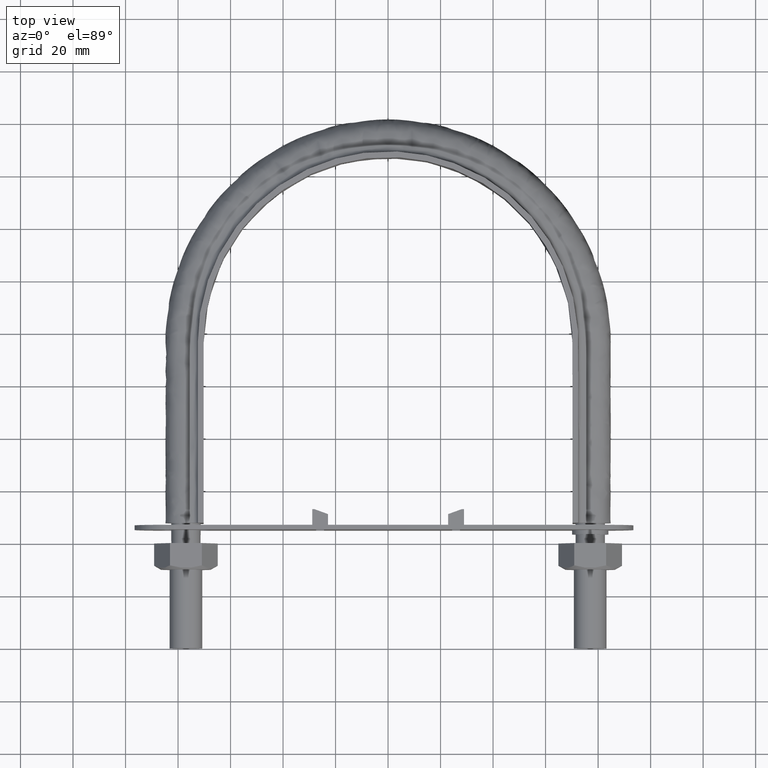
[diagram: clean part render]
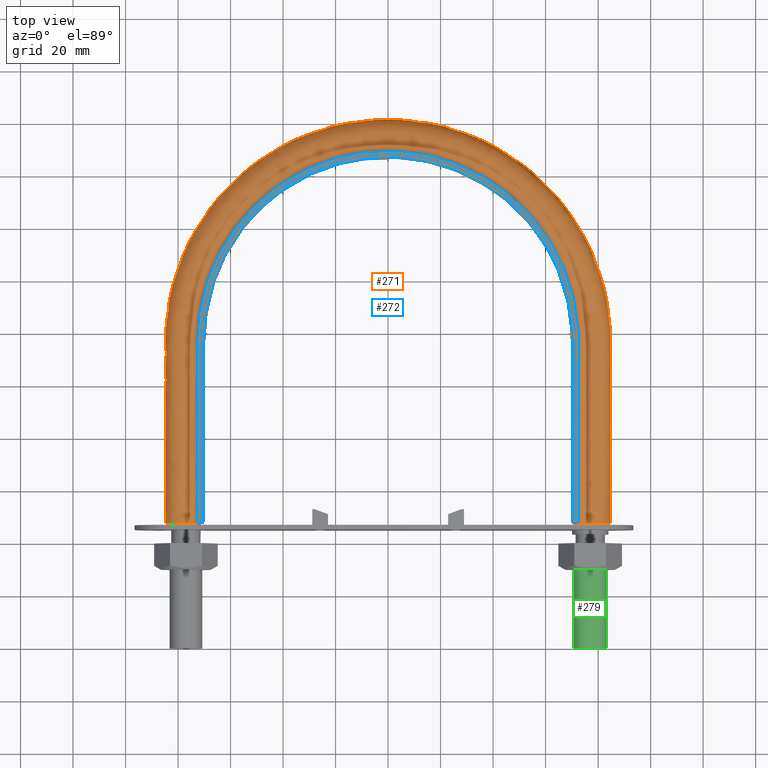
[diagram: same view with three faces highlighted in distinct colors, each labeled with its STEP entity id]
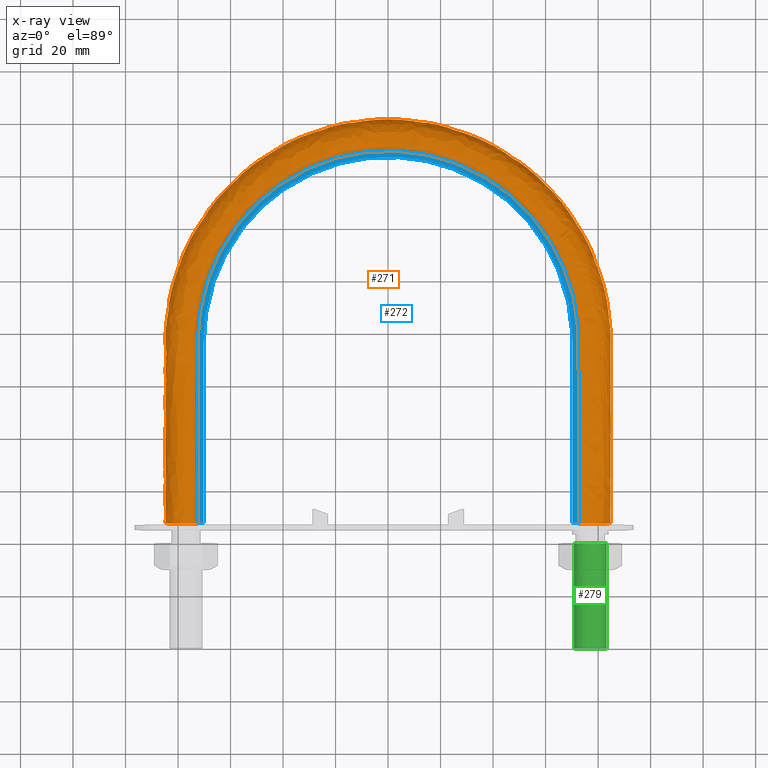
[diagram: x-ray of the same camera — body ghosted, the three highlighted faces saturated]
A machine part, top view with three faces highlighted in distinct colors.
The next image is the same camera in x-ray (body ghosted, the three faces saturated) — at least one of them is partly hidden behind the body in this view.
Their STEP definitions:

[orange] entity #271 — the highlighted face is a freeform B-spline surface patch.
#271 = ADVANCED_FACE( '', ( #355 ), #356, .F. );
#355 = FACE_OUTER_BOUND( '', #543, .T. );
#356 = B_SPLINE_SURFACE_WITH_KNOTS( '', 3, 3, ( ( #544, #545, #546, #547, #548, #549, #550, #551, #552, #553, #554, #555, #556, #557, #558, #559 ), ( #560, #561, #562, #563, #564, #565, #566, #567, #568, #569, #570, #571, #572, #573, #574, #575 ), ( #576, #577, #578, #579, #580, #581, #582, #583, #584, #585, #586, #587, #588, #589, #590, #591 ), ( #592, #593, #594, #595, #596, #597, #598, #599, #600, #601, #602, #603, #604, #605, #606, #607 ), ( #608, #609, #610, #611, #612, #613, #614, #615, #616, #617, #618, #619, #620, #621, #622, #623 ), ( #624, #625, #626, #627, #628, #629, #630, #631, #632, #633, #634, #635, #636, #637, #638, #639 ), ( #640, #641, #642, #643, #644, #645, #646, #647, #648, #649, #650, #651, #652, #653, #654, #655 ), ( #656, #657, #658, #659, #660, #661, #662, #663, #664, #665, #666, #667, #668, #669, #670, #671 ), ( #672, #673, #674, #675, #676, #677, #678, #679, #680, #681, #682, #683, #684, #685, #686, #687 ), ( #688, #689, #690, #691, #692, #693, #694, #695, #696, #697, #698, #699, #700, #701, #702, #703 ), ( #704, #705, #706, #707, #708, #709, #710, #711, #712, #713, #714, #715, #716, #717, #718, #719 ), ( #720, #721, #722, #723, #724, #725, #726, #727, #728, #729, #730, #731, #732, #733, #734, #735 ), ( #736, #737, #738, #739, #740, #741, #742, #743, #744, #745, #746, #747, #748, #749, #750, #751 ), ( #752, #753, #754, #755, #756, #757, #758, #759, #760, #761, #762, #763, #764, #765, #766, #767 ), ( #768, #769, #770, #771, #772, #773, #774, #775, #776, #777, #778, #779, #780, #781, #782, #783 ), ( #784, #785, #786, #787, #788, #789, #790, #791, #792, #793, #794, #795, #796, #797, #798, #799 ), ( #800, #801, #802, #803, #804, #805, #806, #807, #808, #809, #810, #811, #812, #813, #814, #815 ), ( #816, #817, #818, #819, #820, #821, #822, #823, #824, #825, #826, #827, #828, #829, #830, #831 ), ( #832, #833, #834, #835, #836, #837, #838, #839, #840, #841, #842, #843, #844, #845, #846, #847 ), ( #848, #849, #850, #851, #852, #853, #854, #855, #856, #857, #858, #859, #860, #861, #862, #863 ), ( #864, #865, #866, #867, #868, #869, #870, #871, #872, #873, #874, #875, #876, #877, #878, #879 ), ( #880, #881, #882, #883, #884, #885, #886, #887, #888, #889, #890, #891, #892, #893, #894, #895 ), ( #896, #897, #898, #899, #900, #901, #902, #903, #904, #905, #906, #907, #908, #909, #910, #911 ), ( #912, #913, #914, #915, #916, #917, #918, #919, #920, #921, #922, #923, #924, #925, #926, #927 ), ( #928, #929, #930, #931, #932, #933, #934, #935, #936, #937, #938, #939, #940, #941, #942, #943 ), ( #944, #945, #946, #947, #948, #949, #950, #951, #952, #953, #954, #955, #956, #957, #958, #959 ), ( #960, #961, #962, #963, #964, #965, #966, #967, #968, #969, #970, #971, #972, #973, #974, #975 ), ( #976, #977, #978, #979, #980, #981, #982, #983, #984, #985, #986, #987, #988, #989, #990, #991 ), ( #992, #993, #994, #995, #996, #997, #998, #999, #1000, #1001, #1002, #1003, #1004, #1005, #1006, #1007 ), ( #1008, #1009, #1010, #1011, #1012, #1013, #1014, #1015, #1016, #1017, #1018, #1019, #1020, #1021, #1022, #1023 ), ( #1024, #1025, #1026, #1027, #1028, #1029, #1030, #1031, #1032, #1033, #1034, #1035, #1036, #1037, #1038, #1039 ) ), .UNSPECIFIED., .F., .F., .F., ( 4, 3, 1, 1, 1, 3, 3, 1, 1, 1, 3, 3, 1, 1, 1, 3, 4 ), ( 4, 3, 1, 1, 1, 1, 1, 1, 3, 4 ), ( 0.105263157894737, 0.157894736842105, 0.210526315789474, 0.263157894736842, 0.315789473684211, 0.368421052631579, 0.421052631578947, 0.473684210526316, 0.526315789473684, 0.578947368421053, 0.631578947368421, 0.684210526315789, 0.736842105263158, 0.789473684210526, 0.842105263157895, 0.894736842105263, 0.947368421052632 ), ( 0.000000000000000, 1.00000000000000, 2.00000000000000, 3.00000000000000, 4.00000000000000, 5.00000000000000, 6.00000000000000, 7.00000000000000, 8.00000000000000, 9.00000000000000 ), .UNSPECIFIED. );
#543 = EDGE_LOOP( '', ( #1609, #1610, #1611, #1612 ) );
#544 = CARTESIAN_POINT( '', ( 72.4500000000000, 47.7100000000000, -15.0000000000000 ) );
#545 = CARTESIAN_POINT( '', ( 72.4500000000000, 70.7266666666666, -15.0000000000000 ) );
#546 = CARTESIAN_POINT( '', ( 72.4500000000000, 93.7433333333333, -15.0000000000000 ) );
#547 = CARTESIAN_POINT( '', ( 72.4500000000000, 116.760000000000, -15.0000000000000 ) );
#548 = CARTESIAN_POINT( '', ( 72.4500000000000, 127.584175230504, -15.0000000000000 ) );
#549 = CARTESIAN_POINT( '', ( 67.5035108460798, 149.273453800089, -15.0000000000000 ) );
#550 = CARTESIAN_POINT( '', ( 46.7138789159023, 175.335910248336, -15.0000000000000 ) );
#551 = CARTESIAN_POINT( '', ( 16.6719903583027, 189.805050635421, -15.0000000000000 ) );
#552 = CARTESIAN_POINT( '', ( -16.6719903583025, 189.805050635421, -15.0000000000000 ) );
#553 = CARTESIAN_POINT( '', ( -46.7138789159022, 175.335910248336, -15.0000000000000 ) );
#554 = CARTESIAN_POINT( '', ( -67.5035108460798, 149.273453800089, -15.0000000000000 ) );
#555 = CARTESIAN_POINT( '', ( -72.4500000000000, 127.584175230504, -15.0000000000000 ) );
#556 = CARTESIAN_POINT( '', ( -72.4500000000000, 116.760000000000, -15.0000000000000 ) );
#557 = CARTESIAN_POINT( '', ( -72.4500000000000, 93.7433333333334, -15.0000000000000 ) );
#558 = CARTESIAN_POINT( '', ( -72.4500000000000, 70.7266666666667, -15.0000000000000 ) );
#559 = CARTESIAN_POINT( '', ( -72.4500000000000, 47.7100000000000, -15.0000000000000 ) );
#560 = CARTESIAN_POINT( '', ( 72.4500000000000, 47.7100000000000, -13.2666666666667 ) );
#561 = CARTESIAN_POINT( '', ( 72.4500000000000, 70.7266666666666, -13.2666666666667 ) );
#562 = CARTESIAN_POINT( '', ( 72.4500000000000, 93.7433333333333, -13.2666666666667 ) );
#563 = CARTESIAN_POINT( '', ( 72.4500000000000, 116.760000000000, -13.2666666666667 ) );
#564 = CARTESIAN_POINT( '', ( 72.4500000000000, 127.584175230504, -13.2666666666667 ) );
#565 = CARTESIAN_POINT( '', ( 67.5035108460798, 149.273453800089, -13.2666666666667 ) );
#566 = CARTESIAN_POINT( '', ( 46.7138789159023, 175.335910248336, -13.2666666666667 ) );
#567 = CARTESIAN_POINT( '', ( 16.6719903583027, 189.805050635421, -13.2666666666667 ) );
#568 = CARTESIAN_POINT( '', ( -16.6719903583025, 189.805050635421, -13.2666666666667 ) );
#569 = CARTESIAN_POINT( '', ( -46.7138789159022, 175.335910248336, -13.2666666666667 ) );
#570 = CARTESIAN_POINT( '', ( -67.5035108460798, 149.273453800089, -13.2666666666667 ) );
#571 = CARTESIAN_POINT( '', ( -72.4500000000000, 127.584175230504, -13.2666666666667 ) );
#572 = CARTESIAN_POINT( '', ( -72.4500000000000, 116.760000000000, -13.2666666666667 ) );
#573 = CARTESIAN_POINT( '', ( -72.4500000000000, 93.7433333333334, -13.2666666666667 ) );
#574 = CARTESIAN_POINT( '', ( -72.4500000000000, 70.7266666666667, -13.2666666666667 ) );
#575 = CARTESIAN_POINT( '', ( -72.4500000000000, 47.7100000000000, -13.2666666666667 ) );
#576 = CARTESIAN_POINT( '', ( 72.4500000000000, 47.7100000000000, -11.5333333333333 ) );
#577 = CARTESIAN_POINT( '', ( 72.4500000000000, 70.7266666666667, -11.5333333333333 ) );
#578 = CARTESIAN_POINT( '', ( 72.4500000000000, 93.7433333333333, -11.5333333333333 ) );
#579 = CARTESIAN_POINT( '', ( 72.4500000000000, 116.760000000000, -11.5333333333333 ) );
#580 = CARTESIAN_POINT( '', ( 72.4500000000000, 127.584175230504, -11.5333333333333 ) );
#581 = CARTESIAN_POINT( '', ( 67.5035108460798, 149.273453800089, -11.5333333333333 ) );
#582 = CARTESIAN_POINT( '', ( 46.7138789159023, 175.335910248336, -11.5333333333333 ) );
#583 = CARTESIAN_POINT( '', ( 16.6719903583027, 189.805050635421, -11.5333333333333 ) );
#584 = CARTESIAN_POINT( '', ( -16.6719903583025, 189.805050635421, -11.5333333333333 ) );
#585 = CARTESIAN_POINT( '', ( -46.7138789159022, 175.335910248336, -11.5333333333333 ) );
#586 = CARTESIAN_POINT( '', ( -67.5035108460798, 149.273453800089, -11.5333333333333 ) );
#587 = CARTESIAN_POINT( '', ( -72.4500000000000, 127.584175230504, -11.5333333333333 ) );
#588 = CARTESIAN_POINT( '', ( -72.4500000000000, 116.760000000000, -11.5333333333333 ) );
#589 = CARTESIAN_POINT( '', ( -72.4500000000000, 93.7433333333334, -11.5333333333333 ) );
#590 = CARTESIAN_POINT( '', ( -72.4500000000000, 70.7266666666667, -11.5333333333333 ) );
#591 = CARTESIAN_POINT( '', ( -72.4500000000000, 47.7100000000000, -11.5333333333333 ) );
#592 = CARTESIAN_POINT( '', ( 72.4500000000000, 47.7100000000000, -9.79999999999999 ) );
#593 = CARTESIAN_POINT( '', ( 72.4500000000000, 70.7266666666667, -9.79999999999999 ) );
#594 = CARTESIAN_POINT( '', ( 72.4500000000000, 93.7433333333333, -9.79999999999999 ) );
#595 = CARTESIAN_POINT( '', ( 72.4500000000000, 116.760000000000, -9.79999999999999 ) );
#596 = CARTESIAN_POINT( '', ( 72.4500000000000, 127.584175230504, -9.79999999999999 ) );
#597 = CARTESIAN_POINT( '', ( 67.5035108460798, 149.273453800089, -9.80000000000000 ) );
#598 = CARTESIAN_POINT( '', ( 46.7138789159023, 175.335910248336, -9.79999999999998 ) );
#599 = CARTESIAN_POINT( '', ( 16.6719903583027, 189.805050635421, -9.80000000000000 ) );
#600 = CARTESIAN_POINT( '', ( -16.6719903583025, 189.805050635421, -9.79999999999999 ) );
#601 = CARTESIAN_POINT( '', ( -46.7138789159022, 175.335910248336, -9.79999999999999 ) );
#602 = CARTESIAN_POINT( '', ( -67.5035108460798, 149.273453800089, -9.79999999999999 ) );
#603 = CARTESIAN_POINT( '', ( -72.4500000000000, 127.584175230504, -9.79999999999999 ) );
#604 = CARTESIAN_POINT( '', ( -72.4500000000000, 116.760000000000, -9.79999999999999 ) );
#605 = CARTESIAN_POINT( '', ( -72.4500000000000, 93.7433333333334, -9.79999999999999 ) );
#606 = CARTESIAN_POINT( '', ( -72.4500000000000, 70.7266666666667, -9.79999999999999 ) );
#607 = CARTESIAN_POINT( '', ( -72.4500000000000, 47.7100000000000, -9.79999999999999 ) );
#608 = CARTESIAN_POINT( '', ( 72.4500000000000, 47.7100000000000, -9.53823584172332 ) );
#609 = CARTESIAN_POINT( '', ( 72.4500000000000, 70.7266666666667, -9.53823584172332 ) );
#610 = CARTESIAN_POINT( '', ( 72.4500000000000, 93.7433333333333, -9.53823584172332 ) );
#611 = CARTESIAN_POINT( '', ( 72.4500000000000, 116.760000000000, -9.53823584172332 ) );
#612 = CARTESIAN_POINT( '', ( 72.4500000000000, 127.584175230504, -9.53823584172332 ) );
#613 = CARTESIAN_POINT( '', ( 67.5035108460798, 149.273453800089, -9.53823584172334 ) );
#614 = CARTESIAN_POINT( '', ( 46.7138789159023, 175.335910248336, -9.53823584172331 ) );
#615 = CARTESIAN_POINT( '', ( 16.6719903583027, 189.805050635421, -9.53823584172333 ) );
#616 = CARTESIAN_POINT( '', ( -16.6719903583025, 189.805050635421, -9.53823584172332 ) );
#617 = CARTESIAN_POINT( '', ( -46.7138789159022, 175.335910248336, -9.53823584172333 ) );
#618 = CARTESIAN_POINT( '', ( -67.5035108460798, 149.273453800089, -9.53823584172333 ) );
#619 = CARTESIAN_POINT( '', ( -72.4500000000000, 127.584175230504, -9.53823584172332 ) );
#620 = CARTESIAN_POINT( '', ( -72.4500000000000, 116.760000000000, -9.53823584172332 ) );
#621 = CARTESIAN_POINT( '', ( -72.4500000000000, 93.7433333333333, -9.53823584172332 ) );
#622 = CARTESIAN_POINT( '', ( -72.4500000000000, 70.7266666666667, -9.53823584172332 ) );
#623 = CARTESIAN_POINT( '', ( -72.4500000000000, 47.7100000000000, -9.53823584172332 ) );
#624 = CARTESIAN_POINT( '', ( 72.5541362568359, 47.7100000000000, -9.01470752517000 ) );
#625 = CARTESIAN_POINT( '', ( 72.5541362568359, 70.7266666666667, -9.01470752517000 ) );
#626 = CARTESIAN_POINT( '', ( 72.5541362568359, 93.7433333333333, -9.01470752517000 ) );
#627 = CARTESIAN_POINT( '', ( 72.5541362568359, 116.760000000000, -9.01470752517000 ) );
#628 = CARTESIAN_POINT( '', ( 72.5541362568359, 127.600020844551, -9.01470752517000 ) );
#629 = CARTESIAN_POINT( '', ( 67.6005372497070, 149.320053916949, -9.01470752517001 ) );
#630 = CARTESIAN_POINT( '', ( 46.7810232705274, 175.420139589218, -9.01470752516999 ) );
#631 = CARTESIAN_POINT( '', ( 16.6959539010206, 189.910035179395, -9.01470752517000 ) );
#632 = CARTESIAN_POINT( '', ( -16.6959539010205, 189.910035179395, -9.01470752517000 ) );
#633 = CARTESIAN_POINT( '', ( -46.7810232705273, 175.420139589218, -9.01470752517000 ) );
#634 = CARTESIAN_POINT( '', ( -67.6005372497070, 149.320053916949, -9.01470752517000 ) );
#635 = CARTESIAN_POINT( '', ( -72.5541362568359, 127.600020844551, -9.01470752517000 ) );
#636 = CARTESIAN_POINT( '', ( -72.5541362568359, 116.760000000000, -9.01470752517000 ) );
#637 = CARTESIAN_POINT( '', ( -72.5541362568359, 93.7433333333333, -9.01470752517000 ) );
#638 = CARTESIAN_POINT( '', ( -72.5541362568359, 70.7266666666667, -9.01470752517000 ) );
#639 = CARTESIAN_POINT( '', ( -72.5541362568359, 47.7100000000000, -9.01470752517000 ) );
#640 = CARTESIAN_POINT( '', ( 72.9989687109389, 47.7100000000000, -8.34896871093886 ) );
#641 = CARTESIAN_POINT( '', ( 72.9989687109389, 70.7266666666667, -8.34896871093886 ) );
#642 = CARTESIAN_POINT( '', ( 72.9989687109389, 93.7433333333333, -8.34896871093886 ) );
#643 = CARTESIAN_POINT( '', ( 72.9989687109389, 116.760000000000, -8.34896871093886 ) );
#644 = CARTESIAN_POINT( '', ( 72.9989687109389, 127.667707581115, -8.34896871093886 ) );
#645 = CARTESIAN_POINT( '', ( 68.0149989804211, 149.519112774777, -8.34896871093888 ) );
#646 = CARTESIAN_POINT( '', ( 47.0678396873504, 175.779936892776, -8.34896871093885 ) );
#647 = CARTESIAN_POINT( '', ( 16.7983174950284, 190.358491209583, -8.34896871093887 ) );
#648 = CARTESIAN_POINT( '', ( -16.7983174950283, 190.358491209583, -8.34896871093886 ) );
#649 = CARTESIAN_POINT( '', ( -47.0678396873504, 175.779936892776, -8.34896871093886 ) );
#650 = CARTESIAN_POINT( '', ( -68.0149989804210, 149.519112774777, -8.34896871093886 ) );
#651 = CARTESIAN_POINT( '', ( -72.9989687109389, 127.667707581115, -8.34896871093886 ) );
#652 = CARTESIAN_POINT( '', ( -72.9989687109388, 116.760000000000, -8.34896871093886 ) );
#653 = CARTESIAN_POINT( '', ( -72.9989687109388, 93.7433333333333, -8.34896871093886 ) );
#654 = CARTESIAN_POINT( '', ( -72.9989687109388, 70.7266666666667, -8.34896871093886 ) );
#655 = CARTESIAN_POINT( '', ( -72.9989687109389, 47.7100000000000, -8.34896871093886 ) );
#656 = CARTESIAN_POINT( '', ( 73.6647075251700, 47.7100000000000, -7.90413625683590 ) );
#657 = CARTESIAN_POINT( '', ( 73.6647075251700, 70.7266666666667, -7.90413625683590 ) );
#658 = CARTESIAN_POINT( '', ( 73.6647075251700, 93.7433333333333, -7.90413625683590 ) );
#659 = CARTESIAN_POINT( '', ( 73.6647075251700, 116.760000000000, -7.90413625683590 ) );
#660 = CARTESIAN_POINT( '', ( 73.6647075251700, 127.769007941112, -7.90413625683590 ) );
#661 = CARTESIAN_POINT( '', ( 68.6352847950119, 149.817025408512, -7.90413625683591 ) );
#662 = CARTESIAN_POINT( '', ( 47.4970907895949, 176.318411610672, -7.90413625683589 ) );
#663 = CARTESIAN_POINT( '', ( 16.9515154397077, 191.029653088664, -7.90413625683590 ) );
#664 = CARTESIAN_POINT( '', ( -16.9515154397075, 191.029653088664, -7.90413625683589 ) );
#665 = CARTESIAN_POINT( '', ( -47.4970907895948, 176.318411610672, -7.90413625683590 ) );
#666 = CARTESIAN_POINT( '', ( -68.6352847950119, 149.817025408512, -7.90413625683590 ) );
#667 = CARTESIAN_POINT( '', ( -73.6647075251700, 127.769007941112, -7.90413625683590 ) );
#668 = CARTESIAN_POINT( '', ( -73.6647075251700, 116.760000000000, -7.90413625683590 ) );
#669 = CARTESIAN_POINT( '', ( -73.6647075251700, 93.7433333333333, -7.90413625683590 ) );
#670 = CARTESIAN_POINT( '', ( -73.6647075251700, 70.7266666666667, -7.90413625683590 ) );
#671 = CARTESIAN_POINT( '', ( -73.6647075251700, 47.7100000000000, -7.90413625683590 ) );
#672 = CARTESIAN_POINT( '', ( 74.1882358417233, 47.7100000000000, -7.79999999999999 ) );
#673 = CARTESIAN_POINT( '', ( 74.1882358417233, 70.7266666666667, -7.79999999999999 ) );
#674 = CARTESIAN_POINT( '', ( 74.1882358417233, 93.7433333333333, -7.79999999999999 ) );
#675 = CARTESIAN_POINT( '', ( 74.1882358417234, 116.760000000000, -7.79999999999999 ) );
#676 = CARTESIAN_POINT( '', ( 74.1882358417234, 127.848669222387, -7.79999999999999 ) );
#677 = CARTESIAN_POINT( '', ( 69.1230694657460, 150.051300016339, -7.80000000000000 ) );
#678 = CARTESIAN_POINT( '', ( 47.8346482552749, 176.741861102486, -7.79999999999998 ) );
#679 = CARTESIAN_POINT( '', ( 17.0719883043850, 191.557446032652, -7.80000000000000 ) );
#680 = CARTESIAN_POINT( '', ( -17.0719883043849, 191.557446032652, -7.79999999999998 ) );
#681 = CARTESIAN_POINT( '', ( -47.8346482552749, 176.741861102486, -7.79999999999999 ) );
#682 = CARTESIAN_POINT( '', ( -69.1230694657460, 150.051300016339, -7.79999999999999 ) );
#683 = CARTESIAN_POINT( '', ( -74.1882358417233, 127.848669222387, -7.79999999999999 ) );
#684 = CARTESIAN_POINT( '', ( -74.1882358417233, 116.760000000000, -7.79999999999999 ) );
#685 = CARTESIAN_POINT( '', ( -74.1882358417233, 93.7433333333333, -7.79999999999999 ) );
#686 = CARTESIAN_POINT( '', ( -74.1882358417233, 70.7266666666667, -7.79999999999999 ) );
#687 = CARTESIAN_POINT( '', ( -74.1882358417233, 47.7100000000000, -7.79999999999999 ) );
#688 = CARTESIAN_POINT( '', ( 74.4500000000000, 47.7100000000000, -7.79999999999999 ) );
#689 = CARTESIAN_POINT( '', ( 74.4500000000000, 70.7266666666667, -7.79999999999999 ) );
#690 = CARTESIAN_POINT( '', ( 74.4500000000000, 93.7433333333333, -7.79999999999999 ) );
#691 = CARTESIAN_POINT( '', ( 74.4500000000000, 116.760000000000, -7.79999999999999 ) );
#692 = CARTESIAN_POINT( '', ( 74.4500000000000, 127.888499863024, -7.79999999999999 ) );
#693 = CARTESIAN_POINT( '', ( 69.3669618011131, 150.168437320253, -7.80000000000000 ) );
#694 = CARTESIAN_POINT( '', ( 48.0034269881149, 176.953585848393, -7.79999999999998 ) );
#695 = CARTESIAN_POINT( '', ( 17.1322247367237, 191.821342504646, -7.80000000000000 ) );
#696 = CARTESIAN_POINT( '', ( -17.1322247367236, 191.821342504646, -7.79999999999998 ) );
#697 = CARTESIAN_POINT( '', ( -48.0034269881148, 176.953585848393, -7.79999999999999 ) );
#698 = CARTESIAN_POINT( '', ( -69.3669618011131, 150.168437320253, -7.79999999999999 ) );
#699 = CARTESIAN_POINT( '', ( -74.4500000000000, 127.888499863024, -7.79999999999999 ) );
#700 = CARTESIAN_POINT( '', ( -74.4500000000000, 116.760000000000, -7.79999999999999 ) );
#701 = CARTESIAN_POINT( '', ( -74.4500000000000, 93.7433333333333, -7.79999999999999 ) );
#702 = CARTESIAN_POINT( '', ( -74.4500000000000, 70.7266666666667, -7.79999999999999 ) );
#703 = CARTESIAN_POINT( '', ( -74.4500000000000, 47.7100000000000, -7.79999999999999 ) );
#704 = CARTESIAN_POINT( '', ( 75.3000000000000, 47.7100000000000, -7.79999999999999 ) );
#705 = CARTESIAN_POINT( '', ( 75.3000000000000, 70.7266666666666, -7.79999999999999 ) );
#706 = CARTESIAN_POINT( '', ( 75.3000000000000, 93.7433333333333, -7.79999999999999 ) );
#707 = CARTESIAN_POINT( '', ( 75.3000000000000, 116.760000000000, -7.79999999999999 ) );
#708 = CARTESIAN_POINT( '', ( 75.3000000000000, 128.017837831845, -7.79999999999999 ) );
#709 = CARTESIAN_POINT( '', ( 70.1589284570022, 150.548805316322, -7.80000000000000 ) );
#710 = CARTESIAN_POINT( '', ( 48.5514849188053, 177.641097978417, -7.79999999999998 ) );
#711 = CARTESIAN_POINT( '', ( 17.3278243475527, 192.678266549066, -7.80000000000000 ) );
#712 = CARTESIAN_POINT( '', ( -17.3278243475525, 192.678266549066, -7.79999999999999 ) );
#713 = CARTESIAN_POINT( '', ( -48.5514849188052, 177.641097978417, -7.79999999999999 ) );
#714 = CARTESIAN_POINT( '', ( -70.1589284570022, 150.548805316322, -7.79999999999999 ) );
#715 = CARTESIAN_POINT( '', ( -75.3000000000000, 128.017837831845, -7.79999999999999 ) );
#716 = CARTESIAN_POINT( '', ( -75.3000000000000, 116.760000000000, -7.79999999999999 ) );
#717 = CARTESIAN_POINT( '', ( -75.3000000000000, 93.7433333333334, -7.79999999999999 ) );
#718 = CARTESIAN_POINT( '', ( -75.3000000000000, 70.7266666666667, -7.79999999999999 ) );
#719 = CARTESIAN_POINT( '', ( -75.3000000000000, 47.7100000000000, -7.79999999999999 ) );
#720 = CARTESIAN_POINT( '', ( 76.1500000000000, 47.7100000000000, -7.79999999999999 ) );
#721 = CARTESIAN_POINT( '', ( 76.1500000000000, 70.7266666666666, -7.79999999999999 ) );
#722 = CARTESIAN_POINT( '', ( 76.1500000000000, 93.7433333333333, -7.79999999999999 ) );
#723 = CARTESIAN_POINT( '', ( 76.1500000000000, 116.760000000000, -7.79999999999999 ) );
#724 = CARTESIAN_POINT( '', ( 76.1500000000000, 128.147175800666, -7.79999999999999 ) );
#725 = CARTESIAN_POINT( '', ( 70.9508951128914, 150.929173312392, -7.80000000000000 ) );
#726 = CARTESIAN_POINT( '', ( 49.0995428494956, 178.328610108441, -7.79999999999998 ) );
#727 = CARTESIAN_POINT( '', ( 17.5234239583816, 193.535190593487, -7.80000000000000 ) );
#728 = CARTESIAN_POINT( '', ( -17.5234239583815, 193.535190593487, -7.79999999999999 ) );
#729 = CARTESIAN_POINT( '', ( -49.0995428494956, 178.328610108441, -7.79999999999999 ) );
#730 = CARTESIAN_POINT( '', ( -70.9508951128914, 150.929173312392, -7.79999999999999 ) );
#731 = CARTESIAN_POINT( '', ( -76.1500000000000, 128.147175800666, -7.79999999999999 ) );
#732 = CARTESIAN_POINT( '', ( -76.1500000000000, 116.760000000000, -7.79999999999999 ) );
#733 = CARTESIAN_POINT( '', ( -76.1500000000000, 93.7433333333334, -7.79999999999999 ) );
#734 = CARTESIAN_POINT( '', ( -76.1500000000000, 70.7266666666667, -7.79999999999999 ) );
#735 = CARTESIAN_POINT( '', ( -76.1500000000000, 47.7100000000000, -7.79999999999999 ) );
#736 = CARTESIAN_POINT( '', ( 77.0000000000000, 47.7100000000000, -7.79999999999999 ) );
#737 = CARTESIAN_POINT( '', ( 77.0000000000000, 70.7266666666666, -7.79999999999999 ) );
#738 = CARTESIAN_POINT( '', ( 77.0000000000000, 93.7433333333333, -7.79999999999999 ) );
#739 = CARTESIAN_POINT( '', ( 77.0000000000000, 116.760000000000, -7.79999999999999 ) );
#740 = CARTESIAN_POINT( '', ( 77.0000000000001, 128.276513769487, -7.79999999999999 ) );
#741 = CARTESIAN_POINT( '', ( 71.7428617687805, 151.309541308462, -7.80000000000000 ) );
#742 = CARTESIAN_POINT( '', ( 49.6476007801860, 179.016122238465, -7.79999999999998 ) );
#743 = CARTESIAN_POINT( '', ( 17.7190235692105, 194.392114637907, -7.80000000000000 ) );
#744 = CARTESIAN_POINT( '', ( -17.7190235692104, 194.392114637907, -7.79999999999999 ) );
#745 = CARTESIAN_POINT( '', ( -49.6476007801860, 179.016122238465, -7.79999999999999 ) );
#746 = CARTESIAN_POINT( '', ( -71.7428617687805, 151.309541308462, -7.79999999999999 ) );
#747 = CARTESIAN_POINT( '', ( -77.0000000000000, 128.276513769487, -7.79999999999999 ) );
#748 = CARTESIAN_POINT( '', ( -77.0000000000000, 116.760000000000, -7.79999999999999 ) );
#749 = CARTESIAN_POINT( '', ( -77.0000000000000, 93.7433333333334, -7.79999999999999 ) );
#750 = CARTESIAN_POINT( '', ( -77.0000000000000, 70.7266666666667, -7.79999999999999 ) );
#751 = CARTESIAN_POINT( '', ( -77.0000000000000, 47.7100000000000, -7.79999999999999 ) );
#752 = CARTESIAN_POINT( '', ( 79.0373902247172, 47.7100000000000, -7.79999999999997 ) );
#753 = CARTESIAN_POINT( '', ( 79.0373902247172, 70.7266666666667, -7.79999999999997 ) );
#754 = CARTESIAN_POINT( '', ( 79.0373902247172, 93.7433333333333, -7.79999999999997 ) );
#755 = CARTESIAN_POINT( '', ( 79.0373902247172, 116.760000000000, -7.79999999999997 ) );
#756 = CARTESIAN_POINT( '', ( 79.0373902247172, 128.586527785206, -7.79999999999997 ) );
#757 = CARTESIAN_POINT( '', ( 73.6411501487929, 152.221256646094, -7.79999999999998 ) );
#758 = CARTESIAN_POINT( '', ( 50.9612570985005, 180.664040465625, -7.79999999999996 ) );
#759 = CARTESIAN_POINT( '', ( 18.1878620810475, 196.446101310175, -7.79999999999998 ) );
#760 = CARTESIAN_POINT( '', ( -18.1878620810474, 196.446101310175, -7.79999999999997 ) );
#761 = CARTESIAN_POINT( '', ( -50.9612570985004, 180.664040465625, -7.79999999999998 ) );
#762 = CARTESIAN_POINT( '', ( -73.6411501487928, 152.221256646094, -7.79999999999997 ) );
#763 = CARTESIAN_POINT( '', ( -79.0373902247172, 128.586527785206, -7.79999999999997 ) );
#764 = CARTESIAN_POINT( '', ( -79.0373902247172, 116.760000000000, -7.79999999999997 ) );
#765 = CARTESIAN_POINT( '', ( -79.0373902247172, 93.7433333333333, -7.79999999999997 ) );
#766 = CARTESIAN_POINT( '', ( -79.0373902247172, 70.7266666666667, -7.79999999999997 ) );
#767 = CARTESIAN_POINT( '', ( -79.0373902247172, 47.7100000000000, -7.79999999999997 ) );
#768 = CARTESIAN_POINT( '', ( 83.1121706741516, 47.7100000000000, -6.11217067415152 ) );
#769 = CARTESIAN_POINT( '', ( 83.1121706741516, 70.7266666666667, -6.11217067415152 ) );
#770 = CARTESIAN_POINT( '', ( 83.1121706741516, 93.7433333333333, -6.11217067415152 ) );
#771 = CARTESIAN_POINT( '', ( 83.1121706741516, 116.760000000000, -6.11217067415152 ) );
#772 = CARTESIAN_POINT( '', ( 83.1121706741516, 129.206555816643, -6.11217067415152 ) );
#773 = CARTESIAN_POINT( '', ( 77.4377269088175, 154.044687321359, -6.11217067415152 ) );
#774 = CARTESIAN_POINT( '', ( 53.5885697351293, 183.959876919944, -6.11217067415151 ) );
#775 = CARTESIAN_POINT( '', ( 19.1255391047213, 200.554074654711, -6.11217067415152 ) );
#776 = CARTESIAN_POINT( '', ( -19.1255391047212, 200.554074654711, -6.11217067415151 ) );
#777 = CARTESIAN_POINT( '', ( -53.5885697351293, 183.959876919944, -6.11217067415152 ) );
#778 = CARTESIAN_POINT( '', ( -77.4377269088175, 154.044687321359, -6.11217067415152 ) );
#779 = CARTESIAN_POINT( '', ( -83.1121706741515, 129.206555816643, -6.11217067415152 ) );
#780 = CARTESIAN_POINT( '', ( -83.1121706741515, 116.760000000000, -6.11217067415152 ) );
#781 = CARTESIAN_POINT( '', ( -83.1121706741515, 93.7433333333333, -6.11217067415152 ) );
#782 = CARTESIAN_POINT( '', ( -83.1121706741515, 70.7266666666667, -6.11217067415152 ) );
#783 = CARTESIAN_POINT( '', ( -83.1121706741516, 47.7100000000000, -6.11217067415152 ) );
#784 = CARTESIAN_POINT( '', ( 85.6439146629242, 47.7100000000000, -2.58929722408949E-015 ) );
#785 = CARTESIAN_POINT( '', ( 85.6439146629242, 70.7266666666667, -2.58929722408949E-015 ) );
#786 = CARTESIAN_POINT( '', ( 85.6439146629242, 93.7433333333333, -2.58929722408949E-015 ) );
#787 = CARTESIAN_POINT( '', ( 85.6439146629242, 116.760000000000, -2.58929722408949E-015 ) );
#788 = CARTESIAN_POINT( '', ( 85.6439146629242, 129.591791846152, -2.58929722408949E-015 ) );
#789 = CARTESIAN_POINT( '', ( 79.7966172857065, 155.177621894972, -2.58929722408950E-015 ) );
#790 = CARTESIAN_POINT( '', ( 55.2209725251582, 186.007647158058, -2.58929722408949E-015 ) );
#791 = CARTESIAN_POINT( '', ( 19.7081369152183, 203.106442064472, -2.58929722408950E-015 ) );
#792 = CARTESIAN_POINT( '', ( -19.7081369152182, 203.106442064472, -2.58929722408949E-015 ) );
#793 = CARTESIAN_POINT( '', ( -55.2209725251581, 186.007647158058, -2.58929722408949E-015 ) );
#794 = CARTESIAN_POINT( '', ( -79.7966172857065, 155.177621894972, -2.58929722408949E-015 ) );
#795 = CARTESIAN_POINT( '', ( -85.6439146629242, 129.591791846152, -2.58929722408949E-015 ) );
#796 = CARTESIAN_POINT( '', ( -85.6439146629242, 116.760000000000, -2.58929722408949E-015 ) );
#797 = CARTESIAN_POINT( '', ( -85.6439146629242, 93.7433333333333, -2.58929722408949E-015 ) );
#798 = CARTESIAN_POINT( '', ( -85.6439146629242, 70.7266666666667, -2.58929722408949E-015 ) );
#799 = CARTESIAN_POINT( '', ( -85.6439146629242, 47.7100000000000, -2.58929722408949E-015 ) );
#800 = CARTESIAN_POINT( '', ( 83.1121706741516, 47.7100000000000, 6.11217067415151 ) );
#801 = CARTESIAN_POINT( '', ( 83.1121706741516, 70.7266666666667, 6.11217067415151 ) );
#802 = CARTESIAN_POINT( '', ( 83.1121706741516, 93.7433333333333, 6.11217067415151 ) );
#803 = CARTESIAN_POINT( '', ( 83.1121706741516, 116.760000000000, 6.11217067415151 ) );
#804 = CARTESIAN_POINT( '', ( 83.1121706741516, 129.206555816643, 6.11217067415151 ) );
#805 = CARTESIAN_POINT( '', ( 77.4377269088175, 154.044687321359, 6.11217067415152 ) );
#806 = CARTESIAN_POINT( '', ( 53.5885697351293, 183.959876919944, 6.11217067415150 ) );
#807 = CARTESIAN_POINT( '', ( 19.1255391047213, 200.554074654711, 6.11217067415152 ) );
#808 = CARTESIAN_POINT( '', ( -19.1255391047212, 200.554074654711, 6.11217067415151 ) );
#809 = CARTESIAN_POINT( '', ( -53.5885697351293, 183.959876919944, 6.11217067415151 ) );
#810 = CARTESIAN_POINT( '', ( -77.4377269088175, 154.044687321359, 6.11217067415151 ) );
#811 = CARTESIAN_POINT( '', ( -83.1121706741515, 129.206555816643, 6.11217067415151 ) );
#812 = CARTESIAN_POINT( '', ( -83.1121706741515, 116.760000000000, 6.11217067415151 ) );
#813 = CARTESIAN_POINT( '', ( -83.1121706741515, 93.7433333333333, 6.11217067415151 ) );
#814 = CARTESIAN_POINT( '', ( -83.1121706741515, 70.7266666666667, 6.11217067415151 ) );
#815 = CARTESIAN_POINT( '', ( -83.1121706741516, 47.7100000000000, 6.11217067415151 ) );
#816 = CARTESIAN_POINT( '', ( 79.0373902247172, 47.7100000000000, 7.79999999999997 ) );
#817 = CARTESIAN_POINT( '', ( 79.0373902247172, 70.7266666666667, 7.79999999999997 ) );
#818 = CARTESIAN_POINT( '', ( 79.0373902247172, 93.7433333333333, 7.79999999999997 ) );
#819 = CARTESIAN_POINT( '', ( 79.0373902247172, 116.760000000000, 7.79999999999997 ) );
#820 = CARTESIAN_POINT( '', ( 79.0373902247172, 128.586527785206, 7.79999999999997 ) );
#821 = CARTESIAN_POINT( '', ( 73.6411501487929, 152.221256646094, 7.79999999999998 ) );
#822 = CARTESIAN_POINT( '', ( 50.9612570985005, 180.664040465625, 7.79999999999996 ) );
#823 = CARTESIAN_POINT( '', ( 18.1878620810475, 196.446101310175, 7.79999999999998 ) );
#824 = CARTESIAN_POINT( '', ( -18.1878620810474, 196.446101310175, 7.79999999999997 ) );
#825 = CARTESIAN_POINT( '', ( -50.9612570985004, 180.664040465625, 7.79999999999997 ) );
#826 = CARTESIAN_POINT( '', ( -73.6411501487928, 152.221256646094, 7.79999999999997 ) );
#827 = CARTESIAN_POINT( '', ( -79.0373902247172, 128.586527785206, 7.79999999999997 ) );
#828 = CARTESIAN_POINT( '', ( -79.0373902247172, 116.760000000000, 7.79999999999997 ) );
#829 = CARTESIAN_POINT( '', ( -79.0373902247172, 93.7433333333333, 7.79999999999997 ) );
#830 = CARTESIAN_POINT( '', ( -79.0373902247172, 70.7266666666667, 7.79999999999997 ) );
#831 = CARTESIAN_POINT( '', ( -79.0373902247172, 47.7100000000000, 7.79999999999997 ) );
#832 = CARTESIAN_POINT( '', ( 77.0000000000000, 47.7100000000000, 7.79999999999998 ) );
#833 = CARTESIAN_POINT( '', ( 77.0000000000000, 70.7266666666667, 7.79999999999998 ) );
#834 = CARTESIAN_POINT( '', ( 77.0000000000000, 93.7433333333333, 7.79999999999998 ) );
#835 = CARTESIAN_POINT( '', ( 77.0000000000001, 116.760000000000, 7.79999999999998 ) );
#836 = CARTESIAN_POINT( '', ( 77.0000000000001, 128.276513769487, 7.79999999999998 ) );
#837 = CARTESIAN_POINT( '', ( 71.7428617687805, 151.309541308462, 7.79999999999999 ) );
#838 = CARTESIAN_POINT( '', ( 49.6476007801860, 179.016122238465, 7.79999999999997 ) );
#839 = CARTESIAN_POINT( '', ( 17.7190235692105, 194.392114637908, 7.79999999999999 ) );
#840 = CARTESIAN_POINT( '', ( -17.7190235692104, 194.392114637908, 7.79999999999998 ) );
#841 = CARTESIAN_POINT( '', ( -49.6476007801860, 179.016122238465, 7.79999999999998 ) );
#842 = CARTESIAN_POINT( '', ( -71.7428617687805, 151.309541308462, 7.79999999999998 ) );
#843 = CARTESIAN_POINT( '', ( -77.0000000000000, 128.276513769487, 7.79999999999998 ) );
#844 = CARTESIAN_POINT( '', ( -77.0000000000000, 116.760000000000, 7.79999999999998 ) );
#845 = CARTESIAN_POINT( '', ( -77.0000000000000, 93.7433333333333, 7.79999999999998 ) );
#846 = CARTESIAN_POINT( '', ( -77.0000000000000, 70.7266666666667, 7.79999999999998 ) );
#847 = CARTESIAN_POINT( '', ( -77.0000000000000, 47.7100000000000, 7.79999999999998 ) );
#848 = CARTESIAN_POINT( '', ( 76.1500000000000, 47.7100000000000, 7.79999999999999 ) );
#849 = CARTESIAN_POINT( '', ( 76.1500000000000, 70.7266666666667, 7.79999999999999 ) );
#850 = CARTESIAN_POINT( '', ( 76.1500000000000, 93.7433333333333, 7.79999999999999 ) );
#851 = CARTESIAN_POINT( '', ( 76.1500000000000, 116.760000000000, 7.79999999999999 ) );
#852 = CARTESIAN_POINT( '', ( 76.1500000000000, 128.147175800666, 7.79999999999999 ) );
#853 = CARTESIAN_POINT( '', ( 70.9508951128914, 150.929173312392, 7.80000000000000 ) );
#854 = CARTESIAN_POINT( '', ( 49.0995428494956, 178.328610108441, 7.79999999999998 ) );
#855 = CARTESIAN_POINT( '', ( 17.5234239583816, 193.535190593487, 7.80000000000000 ) );
#856 = CARTESIAN_POINT( '', ( -17.5234239583815, 193.535190593487, 7.79999999999999 ) );
#857 = CARTESIAN_POINT( '', ( -49.0995428494956, 178.328610108441, 7.79999999999999 ) );
#858 = CARTESIAN_POINT( '', ( -70.9508951128913, 150.929173312392, 7.79999999999999 ) );
#859 = CARTESIAN_POINT( '', ( -76.1500000000000, 128.147175800666, 7.79999999999999 ) );
#860 = CARTESIAN_POINT( '', ( -76.1500000000000, 116.760000000000, 7.79999999999999 ) );
#861 = CARTESIAN_POINT( '', ( -76.1500000000000, 93.7433333333333, 7.79999999999999 ) );
#862 = CARTESIAN_POINT( '', ( -76.1500000000000, 70.7266666666667, 7.79999999999999 ) );
#863 = CARTESIAN_POINT( '', ( -76.1500000000000, 47.7100000000000, 7.79999999999999 ) );
#864 = CARTESIAN_POINT( '', ( 75.3000000000000, 47.7100000000000, 7.79999999999999 ) );
#865 = CARTESIAN_POINT( '', ( 75.3000000000000, 70.7266666666667, 7.79999999999999 ) );
#866 = CARTESIAN_POINT( '', ( 75.3000000000000, 93.7433333333333, 7.79999999999999 ) );
#867 = CARTESIAN_POINT( '', ( 75.3000000000000, 116.760000000000, 7.79999999999999 ) );
#868 = CARTESIAN_POINT( '', ( 75.3000000000000, 128.017837831845, 7.79999999999999 ) );
#869 = CARTESIAN_POINT( '', ( 70.1589284570022, 150.548805316322, 7.80000000000000 ) );
#870 = CARTESIAN_POINT( '', ( 48.5514849188053, 177.641097978417, 7.79999999999998 ) );
#871 = CARTESIAN_POINT( '', ( 17.3278243475526, 192.678266549066, 7.80000000000000 ) );
#872 = CARTESIAN_POINT( '', ( -17.3278243475525, 192.678266549066, 7.79999999999999 ) );
#873 = CARTESIAN_POINT( '', ( -48.5514849188052, 177.641097978417, 7.79999999999999 ) );
#874 = CARTESIAN_POINT( '', ( -70.1589284570022, 150.548805316322, 7.79999999999999 ) );
#875 = CARTESIAN_POINT( '', ( -75.3000000000000, 128.017837831845, 7.79999999999999 ) );
#876 = CARTESIAN_POINT( '', ( -75.3000000000000, 116.760000000000, 7.79999999999999 ) );
#877 = CARTESIAN_POINT( '', ( -75.3000000000000, 93.7433333333333, 7.79999999999999 ) );
#878 = CARTESIAN_POINT( '', ( -75.3000000000000, 70.7266666666667, 7.79999999999999 ) );
#879 = CARTESIAN_POINT( '', ( -75.3000000000000, 47.7100000000000, 7.79999999999999 ) );
#880 = CARTESIAN_POINT( '', ( 74.4500000000000, 47.7100000000000, 7.79999999999999 ) );
#881 = CARTESIAN_POINT( '', ( 74.4500000000000, 70.7266666666667, 7.79999999999999 ) );
#882 = CARTESIAN_POINT( '', ( 74.4500000000000, 93.7433333333333, 7.79999999999999 ) );
#883 = CARTESIAN_POINT( '', ( 74.4500000000000, 116.760000000000, 7.79999999999999 ) );
#884 = CARTESIAN_POINT( '', ( 74.4500000000000, 127.888499863024, 7.79999999999999 ) );
#885 = CARTESIAN_POINT( '', ( 69.3669618011131, 150.168437320253, 7.80000000000000 ) );
#886 = CARTESIAN_POINT( '', ( 48.0034269881149, 176.953585848393, 7.79999999999998 ) );
#887 = CARTESIAN_POINT( '', ( 17.1322247367237, 191.821342504646, 7.80000000000000 ) );
#888 = CARTESIAN_POINT( '', ( -17.1322247367236, 191.821342504646, 7.79999999999999 ) );
#889 = CARTESIAN_POINT( '', ( -48.0034269881148, 176.953585848393, 7.79999999999999 ) );
#890 = CARTESIAN_POINT( '', ( -69.3669618011130, 150.168437320253, 7.79999999999999 ) );
#891 = CARTESIAN_POINT( '', ( -74.4500000000000, 127.888499863024, 7.79999999999999 ) );
#892 = CARTESIAN_POINT( '', ( -74.4499999999999, 116.760000000000, 7.79999999999999 ) );
#893 = CARTESIAN_POINT( '', ( -74.4499999999999, 93.7433333333333, 7.79999999999999 ) );
#894 = CARTESIAN_POINT( '', ( -74.4499999999999, 70.7266666666667, 7.79999999999999 ) );
#895 = CARTESIAN_POINT( '', ( -74.4500000000000, 47.7100000000000, 7.79999999999999 ) );
#896 = CARTESIAN_POINT( '', ( 74.1882358417233, 47.7100000000000, 7.79999999999999 ) );
#897 = CARTESIAN_POINT( '', ( 74.1882358417233, 70.7266666666667, 7.79999999999999 ) );
#898 = CARTESIAN_POINT( '', ( 74.1882358417233, 93.7433333333333, 7.79999999999999 ) );
#899 = CARTESIAN_POINT( '', ( 74.1882358417233, 116.760000000000, 7.79999999999999 ) );
#900 = CARTESIAN_POINT( '', ( 74.1882358417234, 127.848669222387, 7.79999999999999 ) );
#901 = CARTESIAN_POINT( '', ( 69.1230694657460, 150.051300016339, 7.80000000000000 ) );
#902 = CARTESIAN_POINT( '', ( 47.8346482552749, 176.741861102486, 7.79999999999998 ) );
#903 = CARTESIAN_POINT( '', ( 17.0719883043850, 191.557446032652, 7.80000000000000 ) );
#904 = CARTESIAN_POINT( '', ( -17.0719883043849, 191.557446032652, 7.79999999999999 ) );
#905 = CARTESIAN_POINT( '', ( -47.8346482552748, 176.741861102486, 7.80000000000000 ) );
#906 = CARTESIAN_POINT( '', ( -69.1230694657460, 150.051300016339, 7.79999999999999 ) );
#907 = CARTESIAN_POINT( '', ( -74.1882358417233, 127.848669222387, 7.79999999999999 ) );
#908 = CARTESIAN_POINT( '', ( -74.1882358417233, 116.760000000000, 7.79999999999999 ) );
#909 = CARTESIAN_POINT( '', ( -74.1882358417233, 93.7433333333333, 7.79999999999999 ) );
#910 = CARTESIAN_POINT( '', ( -74.1882358417233, 70.7266666666667, 7.79999999999999 ) );
#911 = CARTESIAN_POINT( '', ( -74.1882358417233, 47.7100000000000, 7.79999999999999 ) );
#912 = CARTESIAN_POINT( '', ( 73.6647075251700, 47.7100000000000, 7.90413625683590 ) );
#913 = CARTESIAN_POINT( '', ( 73.6647075251700, 70.7266666666667, 7.90413625683590 ) );
#914 = CARTESIAN_POINT( '', ( 73.6647075251700, 93.7433333333333, 7.90413625683590 ) );
#915 = CARTESIAN_POINT( '', ( 73.6647075251700, 116.760000000000, 7.90413625683590 ) );
#916 = CARTESIAN_POINT( '', ( 73.6647075251700, 127.769007941112, 7.90413625683590 ) );
#917 = CARTESIAN_POINT( '', ( 68.6352847950119, 149.817025408512, 7.90413625683591 ) );
#918 = CARTESIAN_POINT( '', ( 47.4970907895949, 176.318411610672, 7.90413625683589 ) );
#919 = CARTESIAN_POINT( '', ( 16.9515154397076, 191.029653088664, 7.90413625683591 ) );
#920 = CARTESIAN_POINT( '', ( -16.9515154397075, 191.029653088664, 7.90413625683590 ) );
#921 = CARTESIAN_POINT( '', ( -47.4970907895948, 176.318411610672, 7.90413625683590 ) );
#922 = CARTESIAN_POINT( '', ( -68.6352847950119, 149.817025408512, 7.90413625683590 ) );
#923 = CARTESIAN_POINT( '', ( -73.6647075251700, 127.769007941112, 7.90413625683590 ) );
#924 = CARTESIAN_POINT( '', ( -73.6647075251700, 116.760000000000, 7.90413625683590 ) );
#925 = CARTESIAN_POINT( '', ( -73.6647075251700, 93.7433333333333, 7.90413625683590 ) );
#926 = CARTESIAN_POINT( '', ( -73.6647075251700, 70.7266666666667, 7.90413625683590 ) );
#927 = CARTESIAN_POINT( '', ( -73.6647075251700, 47.7100000000000, 7.90413625683590 ) );
#928 = CARTESIAN_POINT( '', ( 72.9989687109389, 47.7100000000000, 8.34896871093887 ) );
#929 = CARTESIAN_POINT( '', ( 72.9989687109389, 70.7266666666667, 8.34896871093887 ) );
#930 = CARTESIAN_POINT( '', ( 72.9989687109389, 93.7433333333333, 8.34896871093887 ) );
#931 = CARTESIAN_POINT( '', ( 72.9989687109389, 116.760000000000, 8.34896871093887 ) );
#932 = CARTESIAN_POINT( '', ( 72.9989687109389, 127.667707581115, 8.34896871093887 ) );
#933 = CARTESIAN_POINT( '', ( 68.0149989804211, 149.519112774777, 8.34896871093888 ) );
#934 = CARTESIAN_POINT( '', ( 47.0678396873504, 175.779936892776, 8.34896871093886 ) );
#935 = CARTESIAN_POINT( '', ( 16.7983174950284, 190.358491209583, 8.34896871093888 ) );
#936 = CARTESIAN_POINT( '', ( -16.7983174950283, 190.358491209583, 8.34896871093887 ) );
#937 = CARTESIAN_POINT( '', ( -47.0678396873504, 175.779936892776, 8.34896871093887 ) );
#938 = CARTESIAN_POINT( '', ( -68.0149989804210, 149.519112774777, 8.34896871093887 ) );
#939 = CARTESIAN_POINT( '', ( -72.9989687109388, 127.667707581115, 8.34896871093887 ) );
#940 = CARTESIAN_POINT( '', ( -72.9989687109388, 116.760000000000, 8.34896871093887 ) );
#941 = CARTESIAN_POINT( '', ( -72.9989687109388, 93.7433333333333, 8.34896871093887 ) );
#942 = CARTESIAN_POINT( '', ( -72.9989687109388, 70.7266666666667, 8.34896871093887 ) );
#943 = CARTESIAN_POINT( '', ( -72.9989687109389, 47.7100000000000, 8.34896871093887 ) );
#944 = CARTESIAN_POINT( '', ( 72.5541362568359, 47.7100000000000, 9.01470752517000 ) );
#945 = CARTESIAN_POINT( '', ( 72.5541362568359, 70.7266666666667, 9.01470752517000 ) );
#946 = CARTESIAN_POINT( '', ( 72.5541362568359, 93.7433333333333, 9.01470752517000 ) );
#947 = CARTESIAN_POINT( '', ( 72.5541362568359, 116.760000000000, 9.01470752517000 ) );
#948 = CARTESIAN_POINT( '', ( 72.5541362568359, 127.600020844551, 9.01470752517000 ) );
#949 = CARTESIAN_POINT( '', ( 67.6005372497070, 149.320053916949, 9.01470752517001 ) );
#950 = CARTESIAN_POINT( '', ( 46.7810232705274, 175.420139589218, 9.01470752516999 ) );
#951 = CARTESIAN_POINT( '', ( 16.6959539010206, 189.910035179395, 9.01470752517001 ) );
#952 = CARTESIAN_POINT( '', ( -16.6959539010205, 189.910035179395, 9.01470752517000 ) );
#953 = CARTESIAN_POINT( '', ( -46.7810232705273, 175.420139589218, 9.01470752517000 ) );
#954 = CARTESIAN_POINT( '', ( -67.6005372497070, 149.320053916949, 9.01470752517000 ) );
#955 = CARTESIAN_POINT( '', ( -72.5541362568359, 127.600020844551, 9.01470752517000 ) );
#956 = CARTESIAN_POINT( '', ( -72.5541362568359, 116.760000000000, 9.01470752517000 ) );
#957 = CARTESIAN_POINT( '', ( -72.5541362568359, 93.7433333333333, 9.01470752517000 ) );
#958 = CARTESIAN_POINT( '', ( -72.5541362568359, 70.7266666666667, 9.01470752517000 ) );
#959 = CARTESIAN_POINT( '', ( -72.5541362568359, 47.7100000000000, 9.01470752517000 ) );
#960 = CARTESIAN_POINT( '', ( 72.4500000000000, 47.7100000000000, 9.53823584172333 ) );
#961 = CARTESIAN_POINT( '', ( 72.4500000000000, 70.7266666666667, 9.53823584172333 ) );
#962 = CARTESIAN_POINT( '', ( 72.4500000000000, 93.7433333333333, 9.53823584172333 ) );
#963 = CARTESIAN_POINT( '', ( 72.4500000000000, 116.760000000000, 9.53823584172333 ) );
#964 = CARTESIAN_POINT( '', ( 72.4500000000000, 127.584175230504, 9.53823584172333 ) );
#965 = CARTESIAN_POINT( '', ( 67.5035108460798, 149.273453800089, 9.53823584172334 ) );
#966 = CARTESIAN_POINT( '', ( 46.7138789159023, 175.335910248336, 9.53823584172332 ) );
#967 = CARTESIAN_POINT( '', ( 16.6719903583026, 189.805050635421, 9.53823584172334 ) );
#968 = CARTESIAN_POINT( '', ( -16.6719903583025, 189.805050635421, 9.53823584172333 ) );
#969 = CARTESIAN_POINT( '', ( -46.7138789159022, 175.335910248336, 9.53823584172333 ) );
#970 = CARTESIAN_POINT( '', ( -67.5035108460798, 149.273453800089, 9.53823584172333 ) );
#971 = CARTESIAN_POINT( '', ( -72.4500000000000, 127.584175230504, 9.53823584172333 ) );
#972 = CARTESIAN_POINT( '', ( -72.4500000000000, 116.760000000000, 9.53823584172333 ) );
#973 = CARTESIAN_POINT( '', ( -72.4500000000000, 93.7433333333333, 9.53823584172333 ) );
#974 = CARTESIAN_POINT( '', ( -72.4500000000000, 70.7266666666667, 9.53823584172333 ) );
#975 = CARTESIAN_POINT( '', ( -72.4500000000000, 47.7100000000000, 9.53823584172333 ) );
#976 = CARTESIAN_POINT( '', ( 72.4500000000000, 47.7100000000000, 9.79999999999999 ) );
#977 = CARTESIAN_POINT( '', ( 72.4500000000000, 70.7266666666667, 9.79999999999999 ) );
#978 = CARTESIAN_POINT( '', ( 72.4500000000000, 93.7433333333333, 9.79999999999999 ) );
#979 = CARTESIAN_POINT( '', ( 72.4500000000000, 116.760000000000, 9.79999999999999 ) );
#980 = CARTESIAN_POINT( '', ( 72.4500000000000, 127.584175230504, 9.79999999999999 ) );
#981 = CARTESIAN_POINT( '', ( 67.5035108460798, 149.273453800089, 9.80000000000001 ) );
#982 = CARTESIAN_POINT( '', ( 46.7138789159023, 175.335910248336, 9.79999999999998 ) );
#983 = CARTESIAN_POINT( '', ( 16.6719903583026, 189.805050635421, 9.80000000000001 ) );
#984 = CARTESIAN_POINT( '', ( -16.6719903583025, 189.805050635421, 9.79999999999999 ) );
#985 = CARTESIAN_POINT( '', ( -46.7138789159022, 175.335910248336, 9.80000000000000 ) );
#986 = CARTESIAN_POINT( '', ( -67.5035108460798, 149.273453800089, 9.79999999999999 ) );
#987 = CARTESIAN_POINT( '', ( -72.4500000000000, 127.584175230504, 9.79999999999999 ) );
#988 = CARTESIAN_POINT( '', ( -72.4500000000000, 116.760000000000, 9.79999999999999 ) );
#989 = CARTESIAN_POINT( '', ( -72.4500000000000, 93.7433333333333, 9.79999999999999 ) );
#990 = CARTESIAN_POINT( '', ( -72.4500000000000, 70.7266666666667, 9.79999999999999 ) );
#991 = CARTESIAN_POINT( '', ( -72.4500000000000, 47.7100000000000, 9.79999999999999 ) );
#992 = CARTESIAN_POINT( '', ( 72.4500000000000, 47.7100000000000, 11.5333333333333 ) );
#993 = CARTESIAN_POINT( '', ( 72.4500000000000, 70.7266666666667, 11.5333333333333 ) );
#994 = CARTESIAN_POINT( '', ( 72.4500000000000, 93.7433333333333, 11.5333333333333 ) );
#995 = CARTESIAN_POINT( '', ( 72.4500000000000, 116.760000000000, 11.5333333333333 ) );
#996 = CARTESIAN_POINT( '', ( 72.4500000000000, 127.584175230504, 11.5333333333333 ) );
#997 = CARTESIAN_POINT( '', ( 67.5035108460798, 149.273453800089, 11.5333333333333 ) );
#998 = CARTESIAN_POINT( '', ( 46.7138789159023, 175.335910248336, 11.5333333333333 ) );
#999 = CARTESIAN_POINT( '', ( 16.6719903583027, 189.805050635421, 11.5333333333333 ) );
#1000 = CARTESIAN_POINT( '', ( -16.6719903583026, 189.805050635421, 11.5333333333333 ) );
#1001 = CARTESIAN_POINT( '', ( -46.7138789159022, 175.335910248336, 11.5333333333333 ) );
#1002 = CARTESIAN_POINT( '', ( -67.5035108460798, 149.273453800089, 11.5333333333333 ) );
#1003 = CARTESIAN_POINT( '', ( -72.4500000000000, 127.584175230504, 11.5333333333333 ) );
#1004 = CARTESIAN_POINT( '', ( -72.4500000000000, 116.760000000000, 11.5333333333333 ) );
#1005 = CARTESIAN_POINT( '', ( -72.4500000000000, 93.7433333333333, 11.5333333333333 ) );
#1006 = CARTESIAN_POINT( '', ( -72.4500000000000, 70.7266666666667, 11.5333333333333 ) );
#1007 = CARTESIAN_POINT( '', ( -72.4500000000000, 47.7100000000000, 11.5333333333333 ) );
#1008 = CARTESIAN_POINT( '', ( 72.4500000000000, 47.7100000000000, 13.2666666666666 ) );
#1009 = CARTESIAN_POINT( '', ( 72.4500000000000, 70.7266666666667, 13.2666666666666 ) );
#1010 = CARTESIAN_POINT( '', ( 72.4500000000000, 93.7433333333333, 13.2666666666666 ) );
#1011 = CARTESIAN_POINT( '', ( 72.4500000000000, 116.760000000000, 13.2666666666666 ) );
#1012 = CARTESIAN_POINT( '', ( 72.4500000000000, 127.584175230504, 13.2666666666666 ) );
#1013 = CARTESIAN_POINT( '', ( 67.5035108460798, 149.273453800089, 13.2666666666667 ) );
#1014 = CARTESIAN_POINT( '', ( 46.7138789159023, 175.335910248336, 13.2666666666666 ) );
#1015 = CARTESIAN_POINT( '', ( 16.6719903583027, 189.805050635421, 13.2666666666667 ) );
#1016 = CARTESIAN_POINT( '', ( -16.6719903583026, 189.805050635421, 13.2666666666666 ) );
#1017 = CARTESIAN_POINT( '', ( -46.7138789159022, 175.335910248336, 13.2666666666666 ) );
#1018 = CARTESIAN_POINT( '', ( -67.5035108460798, 149.273453800089, 13.2666666666666 ) );
#1019 = CARTESIAN_POINT( '', ( -72.4500000000000, 127.584175230504, 13.2666666666666 ) );
#1020 = CARTESIAN_POINT( '', ( -72.4500000000000, 116.760000000000, 13.2666666666666 ) );
#1021 = CARTESIAN_POINT( '', ( -72.4500000000000, 93.7433333333333, 13.2666666666666 ) );
#1022 = CARTESIAN_POINT( '', ( -72.4500000000000, 70.7266666666667, 13.2666666666666 ) );
#1023 = CARTESIAN_POINT( '', ( -72.4500000000000, 47.7100000000000, 13.2666666666666 ) );
#1024 = CARTESIAN_POINT( '', ( 72.4500000000000, 47.7100000000000, 15.0000000000000 ) );
#1025 = CARTESIAN_POINT( '', ( 72.4500000000000, 70.7266666666667, 15.0000000000000 ) );
#1026 = CARTESIAN_POINT( '', ( 72.4500000000000, 93.7433333333333, 15.0000000000000 ) );
#1027 = CARTESIAN_POINT( '', ( 72.4500000000000, 116.760000000000, 15.0000000000000 ) );
#1028 = CARTESIAN_POINT( '', ( 72.4500000000000, 127.584175230504, 15.0000000000000 ) );
#1029 = CARTESIAN_POINT( '', ( 67.5035108460798, 149.273453800089, 15.0000000000000 ) );
#1030 = CARTESIAN_POINT( '', ( 46.7138789159023, 175.335910248336, 15.0000000000000 ) );
#1031 = CARTESIAN_POINT( '', ( 16.6719903583027, 189.805050635421, 15.0000000000000 ) );
#1032 = CARTESIAN_POINT( '', ( -16.6719903583026, 189.805050635421, 15.0000000000000 ) );
#1033 = CARTESIAN_POINT( '', ( -46.7138789159022, 175.335910248336, 15.0000000000000 ) );
#1034 = CARTESIAN_POINT( '', ( -67.5035108460798, 149.273453800089, 15.0000000000000 ) );
#1035 = CARTESIAN_POINT( '', ( -72.4500000000000, 127.584175230504, 15.0000000000000 ) );
#1036 = CARTESIAN_POINT( '', ( -72.4500000000000, 116.760000000000, 15.0000000000000 ) );
#1037 = CARTESIAN_POINT( '', ( -72.4500000000000, 93.7433333333333, 15.0000000000000 ) );
#1038 = CARTESIAN_POINT( '', ( -72.4500000000000, 70.7266666666667, 15.0000000000000 ) );
#1039 = CARTESIAN_POINT( '', ( -72.4500000000000, 47.7100000000000, 15.0000000000000 ) );
#1609 = ORIENTED_EDGE( '', *, *, #2151, .F. );
#1610 = ORIENTED_EDGE( '', *, *, #2149, .T. );
#1611 = ORIENTED_EDGE( '', *, *, #2143, .F. );
#1612 = ORIENTED_EDGE( '', *, *, #2154, .T. );
#2143 = EDGE_CURVE( '', #2314, #2316, #2317, .T. );
#2149 = EDGE_CURVE( '', #2326, #2316, #2327, .T. );
#2151 = EDGE_CURVE( '', #2326, #2329, #2330, .T. );
#2154 = EDGE_CURVE( '', #2314, #2329, #2334, .T. );
#2314 = VERTEX_POINT( '', #2611 );
#2316 = VERTEX_POINT( '', #2614 );
#2317 = B_SPLINE_CURVE_WITH_KNOTS( '', 3, ( #2615, #2616, #2617, #2618, #2619, #2620, #2621, #2622, #2623, #2624, #2625, #2626, #2627, #2628, #2629, #2630, #2631, #2632, #2633, #2634, #2635, #2636, #2637, #2638, #2639, #2640, #2641, #2642, #2643, #2644, #2645 ), .UNSPECIFIED., .F., .F., ( 4, 3, 1, 1, 1, 3, 3, 1, 1, 1, 3, 3, 1, 1, 1, 3, 4 ), ( -0.947368421052632, -0.894736842105263, -0.842105263157895, -0.789473684210526, -0.736842105263158, -0.684210526315789, -0.631578947368421, -0.578947368421053, -0.526315789473684, -0.473684210526316, -0.421052631578947, -0.368421052631579, -0.315789473684211, -0.263157894736842, -0.210526315789474, -0.157894736842105, -0.105263157894737 ), .UNSPECIFIED. );
#2326 = VERTEX_POINT( '', #2696 );
#2327 = B_SPLINE_CURVE_WITH_KNOTS( '', 3, ( #2697, #2698, #2699, #2700, #2701, #2702, #2703, #2704, #2705, #2706, #2707, #2708, #2709, #2710, #2711, #2712 ), .UNSPECIFIED., .F., .F., ( 4, 3, 1, 1, 1, 1, 1, 1, 3, 4 ), ( 0.000000000000000, 1.00000000000000, 2.00000000000000, 3.00000000000000, 4.00000000000000, 5.00000000000000, 6.00000000000000, 7.00000000000000, 8.00000000000000, 9.00000000000000 ), .UNSPECIFIED. );
#2329 = VERTEX_POINT( '', #2715 );
#2330 = B_SPLINE_CURVE_WITH_KNOTS( '', 3, ( #2716, #2717, #2718, #2719, #2720, #2721, #2722, #2723, #2724, #2725, #2726, #2727, #2728, #2729, #2730, #2731, #2732, #2733, #2734, #2735, #2736, #2737, #2738, #2739, #2740, #2741, #2742, #2743, #2744, #2745, #2746 ), .UNSPECIFIED., .F., .F., ( 4, 3, 1, 1, 1, 3, 3, 1, 1, 1, 3, 3, 1, 1, 1, 3, 4 ), ( 0.105263157894737, 0.157894736842105, 0.210526315789474, 0.263157894736842, 0.315789473684211, 0.368421052631579, 0.421052631578947, 0.473684210526316, 0.526315789473684, 0.578947368421053, 0.631578947368421, 0.684210526315789, 0.736842105263158, 0.789473684210526, 0.842105263157895, 0.894736842105263, 0.947368421052632 ), .UNSPECIFIED. );
#2334 = B_SPLINE_CURVE_WITH_KNOTS( '', 3, ( #2761, #2762, #2763, #2764, #2765, #2766, #2767, #2768, #2769, #2770, #2771, #2772, #2773, #2774, #2775, #2776 ), .UNSPECIFIED., .F., .F., ( 4, 3, 1, 1, 1, 1, 1, 1, 3, 4 ), ( -9.00000000000000, -8.00000000000000, -7.00000000000000, -6.00000000000000, -5.00000000000000, -4.00000000000000, -3.00000000000000, -2.00000000000000, -1.00000000000000, 0.000000000000000 ), .UNSPECIFIED. );
#2611 = CARTESIAN_POINT( '', ( -72.4500000000000, 47.7100000000000, 15.0000000000000 ) );
#2614 = CARTESIAN_POINT( '', ( -72.4500000000000, 47.7100000000000, -15.0000000000000 ) );
#2615 = CARTESIAN_POINT( '', ( -72.4500000000000, 47.7100000000000, 15.0000000000000 ) );
#2616 = CARTESIAN_POINT( '', ( -72.4500000000000, 47.7100000000000, 13.2666666666666 ) );
#2617 = CARTESIAN_POINT( '', ( -72.4500000000000, 47.7100000000000, 11.5333333333333 ) );
#2618 = CARTESIAN_POINT( '', ( -72.4500000000000, 47.7100000000000, 9.79999999999999 ) );
#2619 = CARTESIAN_POINT( '', ( -72.4500000000000, 47.7100000000000, 9.53823584172333 ) );
#2620 = CARTESIAN_POINT( '', ( -72.5541362568359, 47.7100000000000, 9.01470752517000 ) );
#2621 = CARTESIAN_POINT( '', ( -72.9989687109389, 47.7100000000000, 8.34896871093887 ) );
#2622 = CARTESIAN_POINT( '', ( -73.6647075251700, 47.7100000000000, 7.90413625683590 ) );
#2623 = CARTESIAN_POINT( '', ( -74.1882358417233, 47.7100000000000, 7.79999999999999 ) );
#2624 = CARTESIAN_POINT( '', ( -74.4500000000000, 47.7100000000000, 7.79999999999999 ) );
#2625 = CARTESIAN_POINT( '', ( -75.3000000000000, 47.7100000000000, 7.79999999999999 ) );
#2626 = CARTESIAN_POINT( '', ( -76.1500000000000, 47.7100000000000, 7.79999999999999 ) );
#2627 = CARTESIAN_POINT( '', ( -77.0000000000000, 47.7100000000000, 7.79999999999998 ) );
#2628 = CARTESIAN_POINT( '', ( -79.0373902247172, 47.7100000000000, 7.79999999999997 ) );
#2629 = CARTESIAN_POINT( '', ( -83.1121706741516, 47.7100000000000, 6.11217067415151 ) );
#2630 = CARTESIAN_POINT( '', ( -85.6439146629242, 47.7100000000000, -2.58929722408949E-015 ) );
#2631 = CARTESIAN_POINT( '', ( -83.1121706741516, 47.7100000000000, -6.11217067415152 ) );
#2632 = CARTESIAN_POINT( '', ( -79.0373902247172, 47.7100000000000, -7.79999999999997 ) );
#2633 = CARTESIAN_POINT( '', ( -77.0000000000000, 47.7100000000000, -7.79999999999999 ) );
#2634 = CARTESIAN_POINT( '', ( -76.1500000000000, 47.7100000000000, -7.79999999999999 ) );
#2635 = CARTESIAN_POINT( '', ( -75.3000000000000, 47.7100000000000, -7.79999999999999 ) );
#2636 = CARTESIAN_POINT( '', ( -74.4500000000000, 47.7100000000000, -7.79999999999999 ) );
#2637 = CARTESIAN_POINT( '', ( -74.1882358417233, 47.7100000000000, -7.79999999999999 ) );
#2638 = CARTESIAN_POINT( '', ( -73.6647075251700, 47.7100000000000, -7.90413625683590 ) );
#2639 = CARTESIAN_POINT( '', ( -72.9989687109389, 47.7100000000000, -8.34896871093886 ) );
#2640 = CARTESIAN_POINT( '', ( -72.5541362568359, 47.7100000000000, -9.01470752517000 ) );
#2641 = CARTESIAN_POINT( '', ( -72.4500000000000, 47.7100000000000, -9.53823584172332 ) );
#2642 = CARTESIAN_POINT( '', ( -72.4500000000000, 47.7100000000000, -9.79999999999999 ) );
#2643 = CARTESIAN_POINT( '', ( -72.4500000000000, 47.7100000000000, -11.5333333333333 ) );
#2644 = CARTESIAN_POINT( '', ( -72.4500000000000, 47.7100000000000, -13.2666666666667 ) );
#2645 = CARTESIAN_POINT( '', ( -72.4500000000000, 47.7100000000000, -15.0000000000000 ) );
#2696 = CARTESIAN_POINT( '', ( 72.4500000000000, 47.7100000000000, -15.0000000000000 ) );
#2697 = CARTESIAN_POINT( '', ( 72.4500000000000, 47.7100000000000, -15.0000000000000 ) );
#2698 = CARTESIAN_POINT( '', ( 72.4500000000000, 70.7266666666666, -15.0000000000000 ) );
#2699 = CARTESIAN_POINT( '', ( 72.4500000000000, 93.7433333333333, -15.0000000000000 ) );
#2700 = CARTESIAN_POINT( '', ( 72.4500000000000, 116.760000000000, -15.0000000000000 ) );
#2701 = CARTESIAN_POINT( '', ( 72.4500000000000, 127.584175230504, -15.0000000000000 ) );
#2702 = CARTESIAN_POINT( '', ( 67.5035108460798, 149.273453800089, -15.0000000000000 ) );
#2703 = CARTESIAN_POINT( '', ( 46.7138789159023, 175.335910248336, -15.0000000000000 ) );
#2704 = CARTESIAN_POINT( '', ( 16.6719903583027, 189.805050635421, -15.0000000000000 ) );
#2705 = CARTESIAN_POINT( '', ( -16.6719903583025, 189.805050635421, -15.0000000000000 ) );
#2706 = CARTESIAN_POINT( '', ( -46.7138789159022, 175.335910248336, -15.0000000000000 ) );
#2707 = CARTESIAN_POINT( '', ( -67.5035108460798, 149.273453800089, -15.0000000000000 ) );
#2708 = CARTESIAN_POINT( '', ( -72.4500000000000, 127.584175230504, -15.0000000000000 ) );
#2709 = CARTESIAN_POINT( '', ( -72.4500000000000, 116.760000000000, -15.0000000000000 ) );
#2710 = CARTESIAN_POINT( '', ( -72.4500000000000, 93.7433333333334, -15.0000000000000 ) );
#2711 = CARTESIAN_POINT( '', ( -72.4500000000000, 70.7266666666667, -15.0000000000000 ) );
#2712 = CARTESIAN_POINT( '', ( -72.4500000000000, 47.7100000000000, -15.0000000000000 ) );
#2715 = CARTESIAN_POINT( '', ( 72.4500000000000, 47.7100000000000, 15.0000000000000 ) );
#2716 = CARTESIAN_POINT( '', ( 72.4500000000000, 47.7100000000000, -15.0000000000000 ) );
#2717 = CARTESIAN_POINT( '', ( 72.4500000000000, 47.7100000000000, -13.2666666666667 ) );
#2718 = CARTESIAN_POINT( '', ( 72.4500000000000, 47.7100000000000, -11.5333333333333 ) );
#2719 = CARTESIAN_POINT( '', ( 72.4500000000000, 47.7100000000000, -9.79999999999999 ) );
#2720 = CARTESIAN_POINT( '', ( 72.4500000000000, 47.7100000000000, -9.53823584172332 ) );
#2721 = CARTESIAN_POINT( '', ( 72.5541362568359, 47.7100000000000, -9.01470752517000 ) );
#2722 = CARTESIAN_POINT( '', ( 72.9989687109389, 47.7100000000000, -8.34896871093886 ) );
#2723 = CARTESIAN_POINT( '', ( 73.6647075251700, 47.7100000000000, -7.90413625683590 ) );
#2724 = CARTESIAN_POINT( '', ( 74.1882358417233, 47.7100000000000, -7.79999999999999 ) );
#2725 = CARTESIAN_POINT( '', ( 74.4500000000000, 47.7100000000000, -7.79999999999999 ) );
#2726 = CARTESIAN_POINT( '', ( 75.3000000000000, 47.7100000000000, -7.79999999999999 ) );
#2727 = CARTESIAN_POINT( '', ( 76.1500000000000, 47.7100000000000, -7.79999999999999 ) );
#2728 = CARTESIAN_POINT( '', ( 77.0000000000000, 47.7100000000000, -7.79999999999999 ) );
#2729 = CARTESIAN_POINT( '', ( 79.0373902247172, 47.7100000000000, -7.79999999999997 ) );
#2730 = CARTESIAN_POINT( '', ( 83.1121706741516, 47.7100000000000, -6.11217067415152 ) );
#2731 = CARTESIAN_POINT( '', ( 85.6439146629242, 47.7100000000000, -2.58929722408949E-015 ) );
#2732 = CARTESIAN_POINT( '', ( 83.1121706741516, 47.7100000000000, 6.11217067415151 ) );
#2733 = CARTESIAN_POINT( '', ( 79.0373902247172, 47.7100000000000, 7.79999999999997 ) );
#2734 = CARTESIAN_POINT( '', ( 77.0000000000000, 47.7100000000000, 7.79999999999998 ) );
#2735 = CARTESIAN_POINT( '', ( 76.1500000000000, 47.7100000000000, 7.79999999999999 ) );
#2736 = CARTESIAN_POINT( '', ( 75.3000000000000, 47.7100000000000, 7.79999999999999 ) );
#2737 = CARTESIAN_POINT( '', ( 74.4500000000000, 47.7100000000000, 7.79999999999999 ) );
#2738 = CARTESIAN_POINT( '', ( 74.1882358417233, 47.7100000000000, 7.79999999999999 ) );
#2739 = CARTESIAN_POINT( '', ( 73.6647075251700, 47.7100000000000, 7.90413625683590 ) );
#2740 = CARTESIAN_POINT( '', ( 72.9989687109389, 47.7100000000000, 8.34896871093887 ) );
#2741 = CARTESIAN_POINT( '', ( 72.5541362568359, 47.7100000000000, 9.01470752517000 ) );
#2742 = CARTESIAN_POINT( '', ( 72.4500000000000, 47.7100000000000, 9.53823584172333 ) );
#2743 = CARTESIAN_POINT( '', ( 72.4500000000000, 47.7100000000000, 9.79999999999999 ) );
#2744 = CARTESIAN_POINT( '', ( 72.4500000000000, 47.7100000000000, 11.5333333333333 ) );
#2745 = CARTESIAN_POINT( '', ( 72.4500000000000, 47.7100000000000, 13.2666666666666 ) );
#2746 = CARTESIAN_POINT( '', ( 72.4500000000000, 47.7100000000000, 15.0000000000000 ) );
#2761 = CARTESIAN_POINT( '', ( -72.4500000000000, 47.7100000000000, 15.0000000000000 ) );
#2762 = CARTESIAN_POINT( '', ( -72.4500000000000, 70.7266666666667, 15.0000000000000 ) );
#2763 = CARTESIAN_POINT( '', ( -72.4500000000000, 93.7433333333333, 15.0000000000000 ) );
#2764 = CARTESIAN_POINT( '', ( -72.4500000000000, 116.760000000000, 15.0000000000000 ) );
#2765 = CARTESIAN_POINT( '', ( -72.4500000000000, 127.584175230504, 15.0000000000000 ) );
#2766 = CARTESIAN_POINT( '', ( -67.5035108460798, 149.273453800089, 15.0000000000000 ) );
#2767 = CARTESIAN_POINT( '', ( -46.7138789159022, 175.335910248336, 15.0000000000000 ) );
#2768 = CARTESIAN_POINT( '', ( -16.6719903583026, 189.805050635421, 15.0000000000000 ) );
#2769 = CARTESIAN_POINT( '', ( 16.6719903583027, 189.805050635421, 15.0000000000000 ) );
#2770 = CARTESIAN_POINT( '', ( 46.7138789159023, 175.335910248336, 15.0000000000000 ) );
#2771 = CARTESIAN_POINT( '', ( 67.5035108460798, 149.273453800089, 15.0000000000000 ) );
#2772 = CARTESIAN_POINT( '', ( 72.4500000000000, 127.584175230504, 15.0000000000000 ) );
#2773 = CARTESIAN_POINT( '', ( 72.4500000000000, 116.760000000000, 15.0000000000000 ) );
#2774 = CARTESIAN_POINT( '', ( 72.4500000000000, 93.7433333333333, 15.0000000000000 ) );
#2775 = CARTESIAN_POINT( '', ( 72.4500000000000, 70.7266666666667, 15.0000000000000 ) );
#2776 = CARTESIAN_POINT( '', ( 72.4500000000000, 47.7100000000000, 15.0000000000000 ) );

[blue] entity #272 — the highlighted planar face has unit normal (0, 0, 1).
#272 = ADVANCED_FACE( '', ( #357 ), #358, .T. );
#357 = FACE_OUTER_BOUND( '', #1040, .T. );
#358 = PLANE( '', #1041 );
#1040 = EDGE_LOOP( '', ( #1613, #1614, #1615, #1616 ) );
#1041 = AXIS2_PLACEMENT_3D( '', #1617, #1618, #1619 );
#1613 = ORIENTED_EDGE( '', *, *, #2142, .T. );
#1614 = ORIENTED_EDGE( '', *, *, #2146, .T. );
#1615 = ORIENTED_EDGE( '', *, *, #2152, .T. );
#1616 = ORIENTED_EDGE( '', *, *, #2154, .F. );
#1617 = CARTESIAN_POINT( '', ( 100.000000000000, 247.710000000000, 15.0000000000000 ) );
#1618 = DIRECTION( '', ( 0.000000000000000, 0.000000000000000, 1.00000000000000 ) );
#1619 = DIRECTION( '', ( 1.00000000000000, 0.000000000000000, 0.000000000000000 ) );
#2142 = EDGE_CURVE( '', #2314, #2312, #2315, .T. );
#2146 = EDGE_CURVE( '', #2312, #2321, #2322, .T. );
#2152 = EDGE_CURVE( '', #2321, #2329, #2331, .T. );
#2154 = EDGE_CURVE( '', #2314, #2329, #2334, .T. );
#2312 = VERTEX_POINT( '', #2608 );
#2314 = VERTEX_POINT( '', #2611 );
#2315 = LINE( '', #2612, #2613 );
#2321 = VERTEX_POINT( '', #2660 );
#2322 = B_SPLINE_CURVE_WITH_KNOTS( '', 3, ( #2661, #2662, #2663, #2664, #2665, #2666, #2667, #2668, #2669, #2670, #2671, #2672, #2673, #2674, #2675, #2676 ), .UNSPECIFIED., .F., .F., ( 4, 3, 1, 1, 1, 1, 1, 1, 3, 4 ), ( -9.00000000000000, -8.00000000000000, -7.00000000000000, -6.00000000000000, -5.00000000000000, -4.00000000000000, -3.00000000000000, -2.00000000000000, -1.00000000000000, 0.000000000000000 ), .UNSPECIFIED. );
#2329 = VERTEX_POINT( '', #2715 );
#2331 = LINE( '', #2747, #2748 );
#2334 = B_SPLINE_CURVE_WITH_KNOTS( '', 3, ( #2761, #2762, #2763, #2764, #2765, #2766, #2767, #2768, #2769, #2770, #2771, #2772, #2773, #2774, #2775, #2776 ), .UNSPECIFIED., .F., .F., ( 4, 3, 1, 1, 1, 1, 1, 1, 3, 4 ), ( -9.00000000000000, -8.00000000000000, -7.00000000000000, -6.00000000000000, -5.00000000000000, -4.00000000000000, -3.00000000000000, -2.00000000000000, -1.00000000000000, 0.000000000000000 ), .UNSPECIFIED. );
#2608 = CARTESIAN_POINT( '', ( -70.2500000000000, 47.7100000000000, 15.0000000000000 ) );
#2611 = CARTESIAN_POINT( '', ( -72.4500000000000, 47.7100000000000, 15.0000000000000 ) );
#2612 = CARTESIAN_POINT( '', ( -100.000000000000, 47.7100000000000, 15.0000000000000 ) );
#2613 = VECTOR( '', #3326, 1000.00000000000 );
#2660 = CARTESIAN_POINT( '', ( 70.2500000000000, 47.7100000000000, 15.0000000000000 ) );
#2661 = CARTESIAN_POINT( '', ( -70.2500000000000, 47.7100000000000, 15.0000000000000 ) );
#2662 = CARTESIAN_POINT( '', ( -70.2500000000000, 70.7266666666667, 15.0000000000000 ) );
#2663 = CARTESIAN_POINT( '', ( -70.2500000000000, 93.7433333333333, 15.0000000000000 ) );
#2664 = CARTESIAN_POINT( '', ( -70.2500000000000, 116.760000000000, 15.0000000000000 ) );
#2665 = CARTESIAN_POINT( '', ( -70.2500000000000, 127.249418134732, 15.0000000000000 ) );
#2666 = CARTESIAN_POINT( '', ( -65.4537147955432, 148.288971927909, 15.0000000000000 ) );
#2667 = CARTESIAN_POINT( '', ( -45.2953760364684, 173.556467088273, 15.0000000000000 ) );
#2668 = CARTESIAN_POINT( '', ( -16.1657325420394, 187.587129579273, 15.0000000000000 ) );
#2669 = CARTESIAN_POINT( '', ( 16.1657325420395, 187.587129579273, 15.0000000000000 ) );
#2670 = CARTESIAN_POINT( '', ( 45.2953760364684, 173.556467088273, 15.0000000000000 ) );
#2671 = CARTESIAN_POINT( '', ( 65.4537147955432, 148.288971927909, 15.0000000000000 ) );
#2672 = CARTESIAN_POINT( '', ( 70.2500000000000, 127.249418134732, 15.0000000000000 ) );
#2673 = CARTESIAN_POINT( '', ( 70.2500000000000, 116.760000000000, 15.0000000000000 ) );
#2674 = CARTESIAN_POINT( '', ( 70.2500000000000, 93.7433333333333, 15.0000000000000 ) );
#2675 = CARTESIAN_POINT( '', ( 70.2500000000000, 70.7266666666667, 15.0000000000000 ) );
#2676 = CARTESIAN_POINT( '', ( 70.2500000000000, 47.7100000000000, 15.0000000000000 ) );
#2715 = CARTESIAN_POINT( '', ( 72.4500000000000, 47.7100000000000, 15.0000000000000 ) );
#2747 = CARTESIAN_POINT( '', ( -100.000000000000, 47.7100000000000, 15.0000000000000 ) );
#2748 = VECTOR( '', #3330, 1000.00000000000 );
#2761 = CARTESIAN_POINT( '', ( -72.4500000000000, 47.7100000000000, 15.0000000000000 ) );
#2762 = CARTESIAN_POINT( '', ( -72.4500000000000, 70.7266666666667, 15.0000000000000 ) );
#2763 = CARTESIAN_POINT( '', ( -72.4500000000000, 93.7433333333333, 15.0000000000000 ) );
#2764 = CARTESIAN_POINT( '', ( -72.4500000000000, 116.760000000000, 15.0000000000000 ) );
#2765 = CARTESIAN_POINT( '', ( -72.4500000000000, 127.584175230504, 15.0000000000000 ) );
#2766 = CARTESIAN_POINT( '', ( -67.5035108460798, 149.273453800089, 15.0000000000000 ) );
#2767 = CARTESIAN_POINT( '', ( -46.7138789159022, 175.335910248336, 15.0000000000000 ) );
#2768 = CARTESIAN_POINT( '', ( -16.6719903583026, 189.805050635421, 15.0000000000000 ) );
#2769 = CARTESIAN_POINT( '', ( 16.6719903583027, 189.805050635421, 15.0000000000000 ) );
#2770 = CARTESIAN_POINT( '', ( 46.7138789159023, 175.335910248336, 15.0000000000000 ) );
#2771 = CARTESIAN_POINT( '', ( 67.5035108460798, 149.273453800089, 15.0000000000000 ) );
#2772 = CARTESIAN_POINT( '', ( 72.4500000000000, 127.584175230504, 15.0000000000000 ) );
#2773 = CARTESIAN_POINT( '', ( 72.4500000000000, 116.760000000000, 15.0000000000000 ) );
#2774 = CARTESIAN_POINT( '', ( 72.4500000000000, 93.7433333333333, 15.0000000000000 ) );
#2775 = CARTESIAN_POINT( '', ( 72.4500000000000, 70.7266666666667, 15.0000000000000 ) );
#2776 = CARTESIAN_POINT( '', ( 72.4500000000000, 47.7100000000000, 15.0000000000000 ) );
#3326 = DIRECTION( '', ( 1.00000000000000, -1.22460635382238E-016, 0.000000000000000 ) );
#3330 = DIRECTION( '', ( 1.00000000000000, -1.22460635382238E-016, 0.000000000000000 ) );

[green] entity #279 — the highlighted cylindrical surface (bore or boss wall) has radius 6.25 mm, axis along (-0, -1, 0).
#279 = ADVANCED_FACE( '', ( #376, #377 ), #378, .T. );
#376 = FACE_OUTER_BOUND( '', #1409, .T. );
#377 = FACE_OUTER_BOUND( '', #1410, .T. );
#378 = CYLINDRICAL_SURFACE( '', #1411, 6.25000000000001 );
#1409 = EDGE_LOOP( '', ( #1671 ) );
#1410 = EDGE_LOOP( '', ( #1672 ) );
#1411 = AXIS2_PLACEMENT_3D( '', #1673, #1674, #1675 );
#1671 = ORIENTED_EDGE( '', *, *, #2175, .F. );
#1672 = ORIENTED_EDGE( '', *, *, #2176, .T. );
#1673 = CARTESIAN_POINT( '', ( 77.0000000000000, 40.0000000000000, -1.22460635382238E-014 ) );
#1674 = DIRECTION( '', ( -2.44921270764475E-016, -1.00000000000000, 3.06151588455594E-016 ) );
#1675 = DIRECTION( '', ( 1.00000000000000, -2.44921270764475E-016, 0.000000000000000 ) );
#2175 = EDGE_CURVE( '', #2375, #2375, #2376, .T. );
#2176 = EDGE_CURVE( '', #2377, #2377, #2378, .T. );
#2375 = VERTEX_POINT( '', #2865 );
#2376 = CIRCLE( '', #2866, 6.25000000000001 );
#2377 = VERTEX_POINT( '', #2867 );
#2378 = CIRCLE( '', #2868, 6.25000000000001 );
#2865 = CARTESIAN_POINT( '', ( 77.0000000000000, -8.85234133175469E-015, -6.25000000000001 ) );
#2866 = AXIS2_PLACEMENT_3D( '', #3343, #3344, #3345 );
#2867 = CARTESIAN_POINT( '', ( 77.0000000000000, 40.0000000000000, -6.25000000000002 ) );
#2868 = AXIS2_PLACEMENT_3D( '', #3346, #3347, #3348 );
#3343 = CARTESIAN_POINT( '', ( 77.0000000000000, -6.93889390390723E-015, -4.00593428432545E-029 ) );
#3344 = DIRECTION( '', ( -2.44921270764475E-016, -1.00000000000000, 3.06151588455594E-016 ) );
#3345 = DIRECTION( '', ( 0.000000000000000, -3.06151588455594E-016, -1.00000000000000 ) );
#3346 = CARTESIAN_POINT( '', ( 77.0000000000000, 40.0000000000000, -1.22460635382238E-014 ) );
#3347 = DIRECTION( '', ( -2.44921270764475E-016, -1.00000000000000, 3.06151588455594E-016 ) );
#3348 = DIRECTION( '', ( 0.000000000000000, -3.06151588455594E-016, -1.00000000000000 ) );